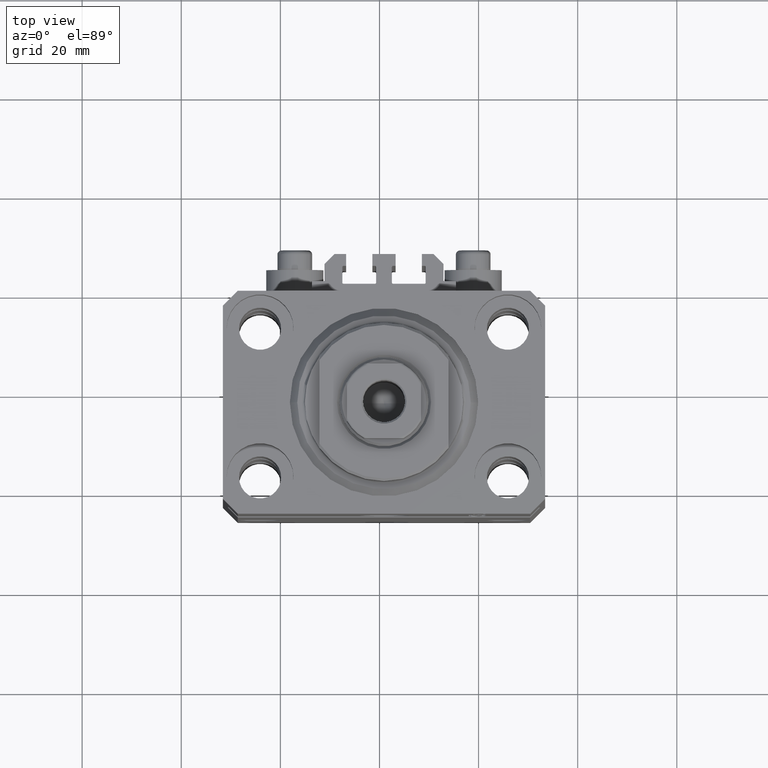
[diagram: clean part render]
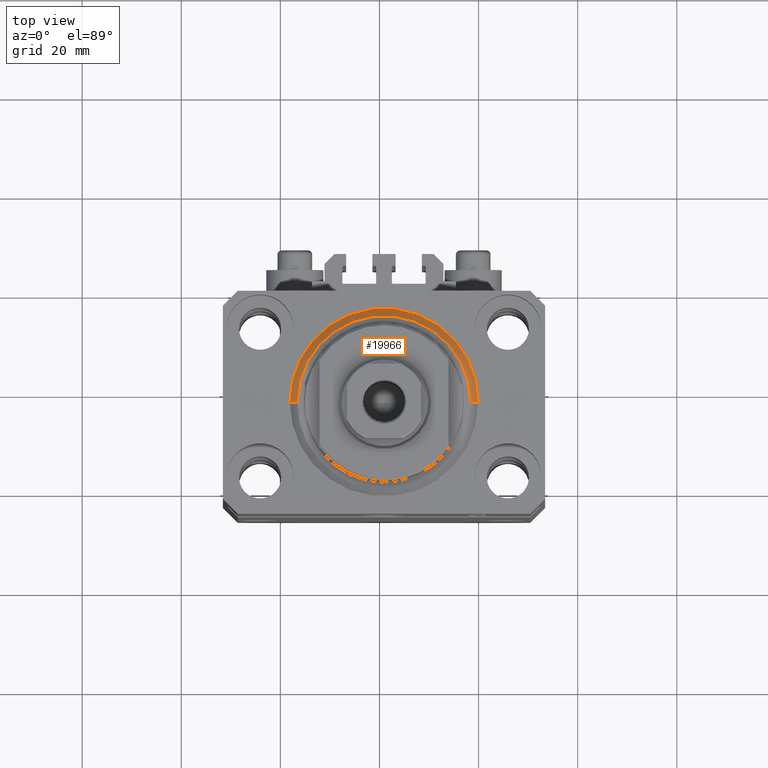
[diagram: same view with one face highlighted and labeled with its STEP entity id]
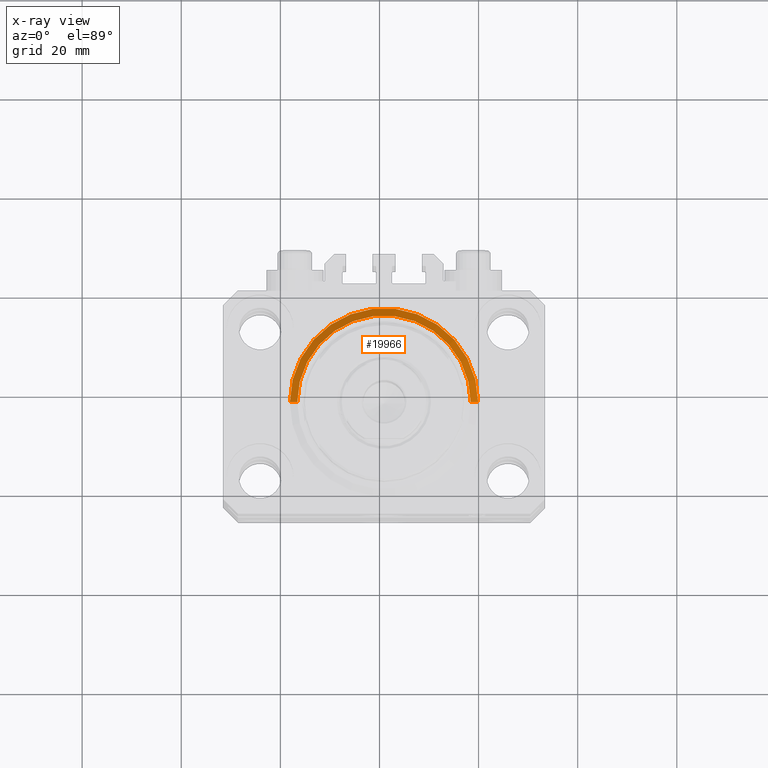
[diagram: x-ray of the same camera — body ghosted, the highlighted face saturated]
A machine part, top view. The second image highlights one B-rep face of the part: STEP entity #19966.
The next image is the same camera in x-ray: the body ghosted, the highlighted face saturated — about 0% of this face is hidden behind the body in this view.
In plain terms, the highlighted conical surface has half-angle 45 deg.
Its self-contained STEP definition (entity closure, byte-faithful):
#2349 = VERTEX_POINT ( 'NONE', #42679 ) ;
#4180 = VECTOR ( 'NONE', #35309, 1000.000000000000000 ) ;
#4649 = FACE_OUTER_BOUND ( 'NONE', #25196, .T. ) ;
#11483 = EDGE_CURVE ( 'NONE', #25368, #46201, #21297, .T. ) ;
#11736 = VECTOR ( 'NONE', #23975, 1000.000000000000000 ) ;
#12885 = CARTESIAN_POINT ( 'NONE',  ( 19.00000000000000000, 0.000000000000000000, 1.500000000000004885 ) ) ;
#14087 = CIRCLE ( 'NONE', #20253, 19.00000000000000000 ) ;
#15970 = DIRECTION ( 'NONE',  ( 1.000000000000000000, 0.000000000000000000, 0.000000000000000000 ) ) ;
#18567 = DIRECTION ( 'NONE',  ( 1.000000000000000000, 0.000000000000000000, 0.000000000000000000 ) ) ;
#19051 = EDGE_CURVE ( 'NONE', #38027, #2349, #20596, .T. ) ;
#19616 = DIRECTION ( 'NONE',  ( -0.000000000000000000, -0.000000000000000000, 1.000000000000000000 ) ) ;
#19966 = ADVANCED_FACE ( 'NONE', ( #4649 ), #31929, .T. ) ;
#20253 = AXIS2_PLACEMENT_3D ( 'NONE', #30684, #26353, #15970 ) ;
#20596 = LINE ( 'NONE', #39164, #4180 ) ;
#21297 = LINE ( 'NONE', #12885, #11736 ) ;
#21452 = CARTESIAN_POINT ( 'NONE',  ( 0.000000000000000000, 0.000000000000000000, 0.000000000000000000 ) ) ;
#21985 = CIRCLE ( 'NONE', #35096, 17.49999999999999289 ) ;
#22214 = EDGE_CURVE ( 'NONE', #38027, #25368, #21985, .T. ) ;
#23263 = CARTESIAN_POINT ( 'NONE',  ( -17.49999999999999289, 2.234980408443919215E-15, 0.000000000000000000 ) ) ;
#23940 = CARTESIAN_POINT ( 'NONE',  ( 0.000000000000000000, 0.000000000000000000, 1.500000000000004885 ) ) ;
#23975 = DIRECTION ( 'NONE',  ( 0.7071067811865483499, 0.000000000000000000, 0.7071067811865467956 ) ) ;
#25196 = EDGE_LOOP ( 'NONE', ( #31076, #43180, #42539, #35578 ) ) ;
#25319 = DIRECTION ( 'NONE',  ( -0.000000000000000000, -0.000000000000000000, -1.000000000000000000 ) ) ;
#25368 = VERTEX_POINT ( 'NONE', #39108 ) ;
#26353 = DIRECTION ( 'NONE',  ( -0.000000000000000000, -0.000000000000000000, 1.000000000000000000 ) ) ;
#30684 = CARTESIAN_POINT ( 'NONE',  ( 0.000000000000000000, 0.000000000000000000, 1.500000000000004885 ) ) ;
#31076 = ORIENTED_EDGE ( 'NONE', *, *, #22214, .F. ) ;
#31929 = CONICAL_SURFACE ( 'NONE', #44297, 19.00000000000000000, 0.7853981633974492782 ) ;
#35096 = AXIS2_PLACEMENT_3D ( 'NONE', #21452, #25319, #18567 ) ;
#35309 = DIRECTION ( 'NONE',  ( -0.7071067811865483499, 8.659560562354943952E-17, 0.7071067811865467956 ) ) ;
#35578 = ORIENTED_EDGE ( 'NONE', *, *, #11483, .F. ) ;
#38027 = VERTEX_POINT ( 'NONE', #23263 ) ;
#38322 = EDGE_CURVE ( 'NONE', #46201, #2349, #14087, .T. ) ;
#39108 = CARTESIAN_POINT ( 'NONE',  ( 17.49999999999999289, 0.000000000000000000, 0.000000000000000000 ) ) ;
#39164 = CARTESIAN_POINT ( 'NONE',  ( -19.00000000000000000, 2.326828918379970970E-15, 1.500000000000004885 ) ) ;
#40767 = CARTESIAN_POINT ( 'NONE',  ( 19.00000000000000000, 2.326828918379970970E-15, 1.500000000000004885 ) ) ;
#42062 = DIRECTION ( 'NONE',  ( 1.000000000000000000, 0.000000000000000000, 0.000000000000000000 ) ) ;
#42539 = ORIENTED_EDGE ( 'NONE', *, *, #38322, .F. ) ;
#42679 = CARTESIAN_POINT ( 'NONE',  ( -19.00000000000000000, 0.000000000000000000, 1.500000000000004885 ) ) ;
#43180 = ORIENTED_EDGE ( 'NONE', *, *, #19051, .T. ) ;
#44297 = AXIS2_PLACEMENT_3D ( 'NONE', #23940, #19616, #42062 ) ;
#46201 = VERTEX_POINT ( 'NONE', #40767 ) ;